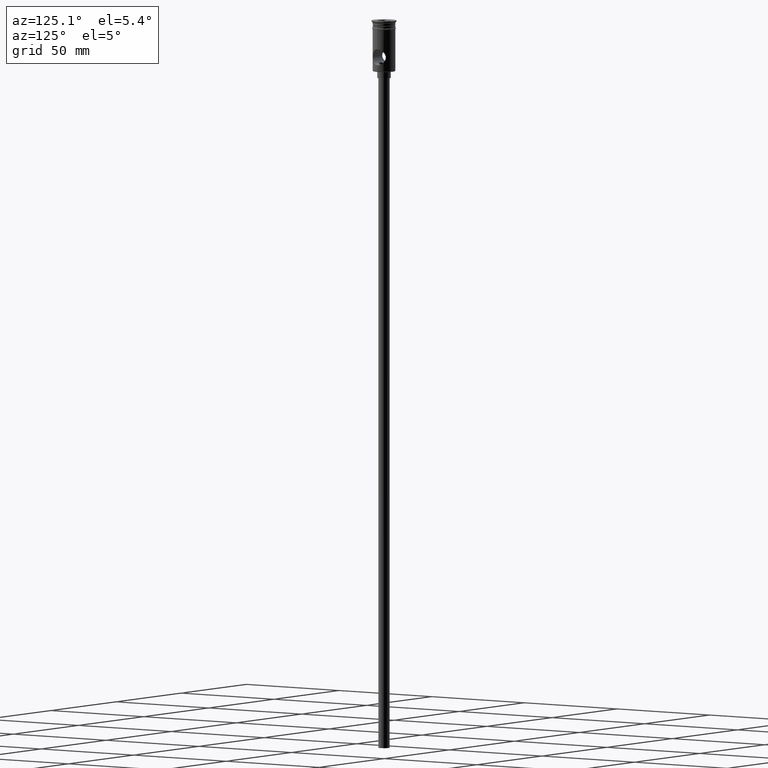
[diagram: clean part render]
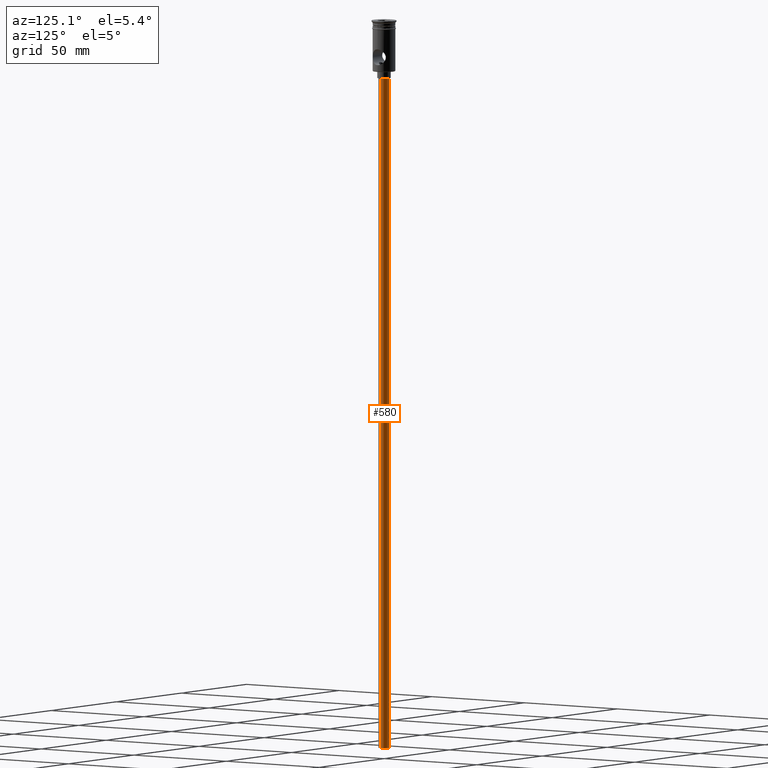
[diagram: same view with one face highlighted and labeled with its STEP entity id]
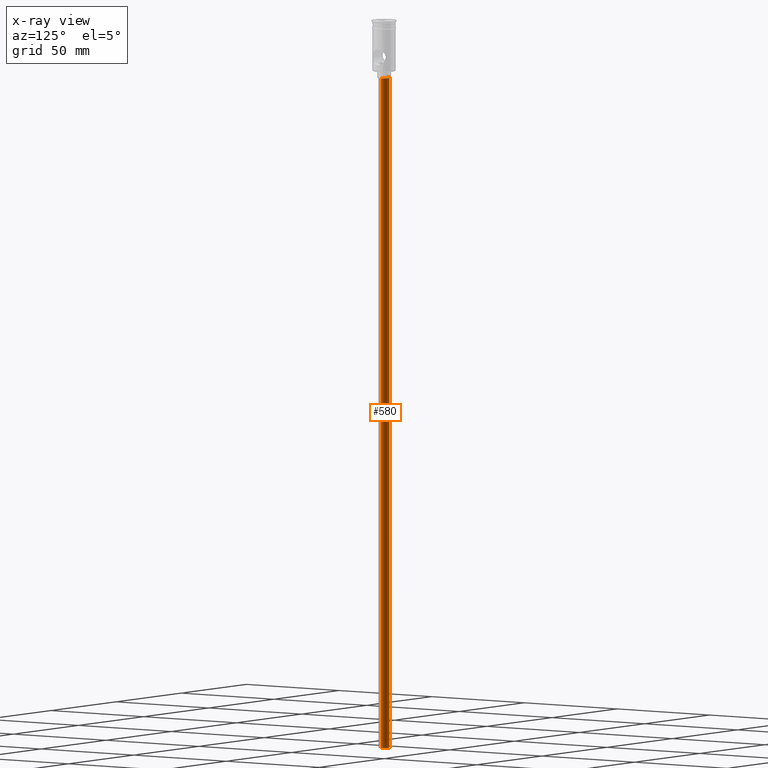
[diagram: x-ray of the same camera — body ghosted, the highlighted face saturated]
A machine part, auxiliary view. The second image highlights one B-rep face of the part: STEP entity #580.
The next image is the same camera in x-ray: the body ghosted, the highlighted face saturated — about 0% of this face is hidden behind the body in this view.
In plain terms, the highlighted cylindrical surface (edge-blend (fillet) strip) has radius 2.5 mm, axis along (-0, -0, 1).
Its self-contained STEP definition (entity closure, byte-faithful):
#9 = DIRECTION ( 'NONE',  ( 0.000000000000000000, 0.000000000000000000, -1.000000000000000000 ) ) ;
#79 = CYLINDRICAL_SURFACE ( 'NONE', #1207, 2.500000000000000000 ) ;
#110 = DIRECTION ( 'NONE',  ( -0.000000000000000000, -0.000000000000000000, 1.000000000000000000 ) ) ;
#201 = VERTEX_POINT ( 'NONE', #972 ) ;
#217 = LINE ( 'NONE', #319, #773 ) ;
#292 = CARTESIAN_POINT ( 'NONE',  ( 0.000000000000000000, 0.000000000000000000, -25.50000000000000000 ) ) ;
#305 = EDGE_CURVE ( 'NONE', #201, #1353, #1230, .T. ) ;
#310 = EDGE_LOOP ( 'NONE', ( #548, #1370, #1381, #996 ) ) ;
#319 = CARTESIAN_POINT ( 'NONE',  ( -2.500000000000000000, 3.061616997868383141E-16, -322.5000000000000000 ) ) ;
#454 = CARTESIAN_POINT ( 'NONE',  ( 2.500000000000000000, 0.000000000000000000, -25.50000000000000000 ) ) ;
#460 = DIRECTION ( 'NONE',  ( -1.000000000000000000, 0.000000000000000000, 0.000000000000000000 ) ) ;
#548 = ORIENTED_EDGE ( 'NONE', *, *, #861, .F. ) ;
#580 = ADVANCED_FACE ( 'NONE', ( #1183 ), #79, .T. ) ;
#596 = CARTESIAN_POINT ( 'NONE',  ( 0.000000000000000000, 0.000000000000000000, -322.5000000000000000 ) ) ;
#633 = EDGE_CURVE ( 'NONE', #1366, #1353, #1411, .T. ) ;
#679 = AXIS2_PLACEMENT_3D ( 'NONE', #596, #9, #460 ) ;
#711 = VERTEX_POINT ( 'NONE', #1444 ) ;
#771 = VECTOR ( 'NONE', #110, 1000.000000000000000 ) ;
#773 = VECTOR ( 'NONE', #1093, 1000.000000000000000 ) ;
#839 = CARTESIAN_POINT ( 'NONE',  ( 2.500000000000000000, 0.000000000000000000, -322.5000000000000000 ) ) ;
#852 = DIRECTION ( 'NONE',  ( -1.000000000000000000, 0.000000000000000000, 0.000000000000000000 ) ) ;
#857 = CARTESIAN_POINT ( 'NONE',  ( 0.000000000000000000, 0.000000000000000000, -322.5000000000000000 ) ) ;
#861 = EDGE_CURVE ( 'NONE', #711, #1366, #868, .T. ) ;
#868 = CIRCLE ( 'NONE', #679, 2.500000000000000000 ) ;
#962 = AXIS2_PLACEMENT_3D ( 'NONE', #292, #1432, #852 ) ;
#972 = CARTESIAN_POINT ( 'NONE',  ( -2.500000000000000000, 3.061616997868383141E-16, -25.50000000000000000 ) ) ;
#996 = ORIENTED_EDGE ( 'NONE', *, *, #633, .F. ) ;
#1061 = DIRECTION ( 'NONE',  ( -0.000000000000000000, -0.000000000000000000, 1.000000000000000000 ) ) ;
#1093 = DIRECTION ( 'NONE',  ( -0.000000000000000000, -0.000000000000000000, 1.000000000000000000 ) ) ;
#1183 = FACE_OUTER_BOUND ( 'NONE', #310, .T. ) ;
#1207 = AXIS2_PLACEMENT_3D ( 'NONE', #857, #1061, #1321 ) ;
#1230 = CIRCLE ( 'NONE', #962, 2.500000000000000000 ) ;
#1252 = EDGE_CURVE ( 'NONE', #711, #201, #217, .T. ) ;
#1321 = DIRECTION ( 'NONE',  ( 1.000000000000000000, 0.000000000000000000, 0.000000000000000000 ) ) ;
#1353 = VERTEX_POINT ( 'NONE', #454 ) ;
#1366 = VERTEX_POINT ( 'NONE', #1368 ) ;
#1368 = CARTESIAN_POINT ( 'NONE',  ( 2.500000000000000000, 0.000000000000000000, -322.5000000000000000 ) ) ;
#1370 = ORIENTED_EDGE ( 'NONE', *, *, #1252, .T. ) ;
#1381 = ORIENTED_EDGE ( 'NONE', *, *, #305, .T. ) ;
#1411 = LINE ( 'NONE', #839, #771 ) ;
#1432 = DIRECTION ( 'NONE',  ( 0.000000000000000000, 0.000000000000000000, -1.000000000000000000 ) ) ;
#1444 = CARTESIAN_POINT ( 'NONE',  ( -2.500000000000000000, 3.061616997868383141E-16, -322.5000000000000000 ) ) ;